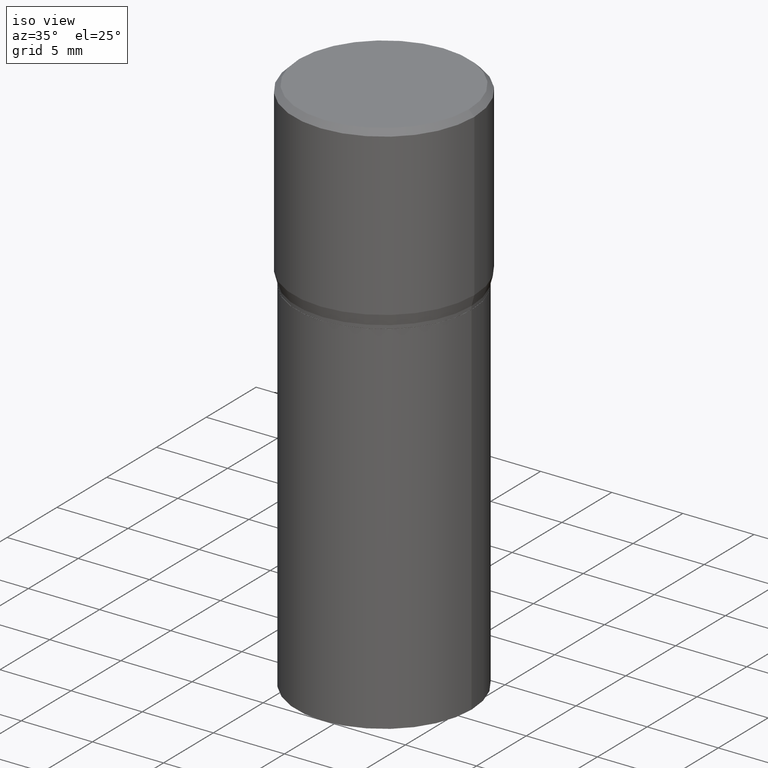
[diagram: clean part render]
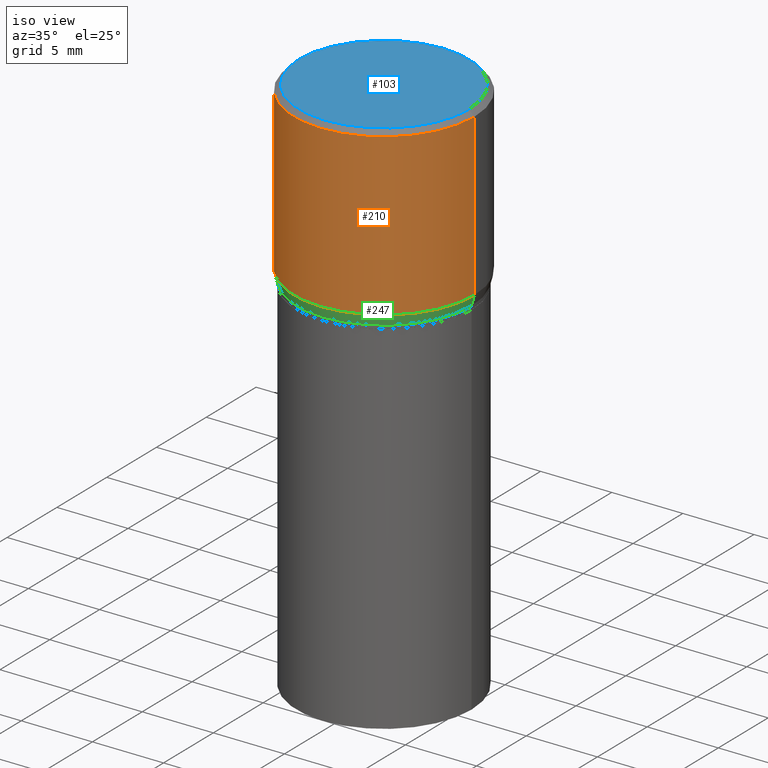
[diagram: same view with three faces highlighted in distinct colors, each labeled with its STEP entity id]
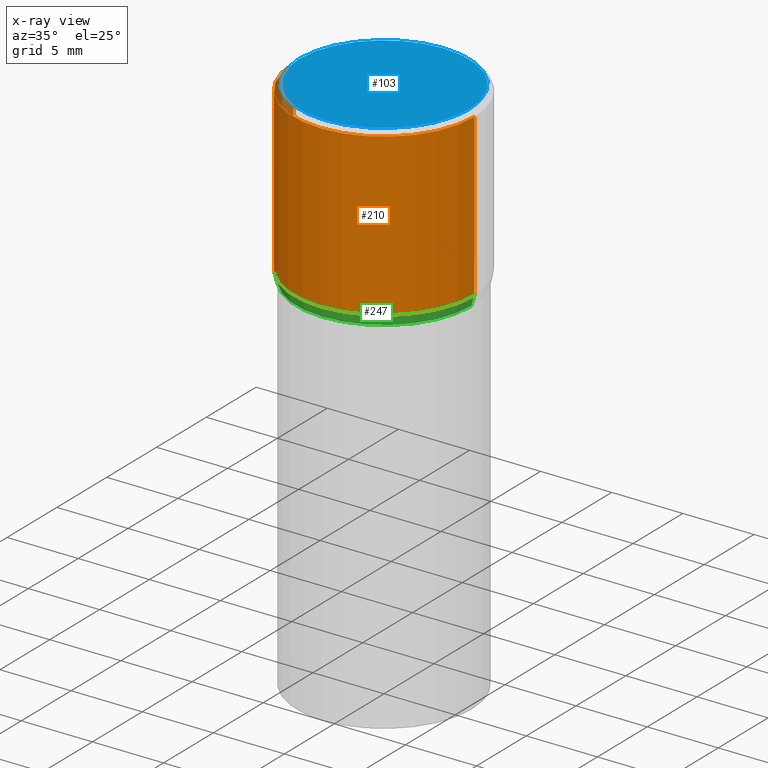
[diagram: x-ray of the same camera — body ghosted, the three highlighted faces saturated]
A machine part, iso view with three faces highlighted in distinct colors.
The next image is the same camera in x-ray (body ghosted, the three faces saturated) — at least one of them is partly hidden behind the body in this view.
Their STEP definitions:

[orange] entity #210 — the highlighted cylindrical surface (partial cylindrical patch) has radius 6.35 mm, axis along (-0, 0, 1).
#11 = CARTESIAN_POINT ( 'NONE',  ( 0.2500000000000000000, -1.745740669421566678E-15, 1.219044193948983948E-29 ) ) ;
#26 = CARTESIAN_POINT ( 'NONE',  ( 0.2500000000000000000, -3.354929516602825687E-15, -0.4608900037009626693 ) ) ;
#54 = EDGE_LOOP ( 'NONE', ( #321, #110, #464, #205 ) ) ;
#74 = VECTOR ( 'NONE', #371, 39.37007874015748143 ) ;
#77 = EDGE_CURVE ( 'NONE', #168, #307, #256, .T. ) ;
#110 = ORIENTED_EDGE ( 'NONE', *, *, #77, .T. ) ;
#114 = CIRCLE ( 'NONE', #215, 0.2500000000000000000 ) ;
#115 = CARTESIAN_POINT ( 'NONE',  ( -0.2500000000000000000, 1.671679922189909619E-16, -0.4608900037009626693 ) ) ;
#119 = CARTESIAN_POINT ( 'NONE',  ( 1.127092127133256402E-29, -1.609188847181259404E-15, -0.4608900037009626693 ) ) ;
#138 = CARTESIAN_POINT ( 'NONE',  ( -0.2500000000000000000, 9.455763057682970257E-16, -0.01499999999999999944 ) ) ;
#155 = LINE ( 'NONE', #11, #74 ) ;
#157 = DIRECTION ( 'NONE',  ( -2.445468806185136597E-29, 3.491481338843145583E-15, 1.000000000000000000 ) ) ;
#162 = CARTESIAN_POINT ( 'NONE',  ( 3.668203209277705088E-31, -5.237222008264718399E-17, -0.01499999999999999944 ) ) ;
#168 = VERTEX_POINT ( 'NONE', #115 ) ;
#169 = DIRECTION ( 'NONE',  ( -2.445468806185136877E-29, 3.491481338843145188E-15, 1.000000000000000000 ) ) ;
#192 = FACE_OUTER_BOUND ( 'NONE', #54, .T. ) ;
#201 = VECTOR ( 'NONE', #169, 39.37007874015748143 ) ;
#205 = ORIENTED_EDGE ( 'NONE', *, *, #442, .F. ) ;
#210 = ADVANCED_FACE ( 'NONE', ( #192 ), #227, .T. ) ;
#215 = AXIS2_PLACEMENT_3D ( 'NONE', #162, #306, #449 ) ;
#227 = CYLINDRICAL_SURFACE ( 'NONE', #399, 0.2500000000000000000 ) ;
#229 = EDGE_CURVE ( 'NONE', #168, #302, #343, .T. ) ;
#253 = VERTEX_POINT ( 'NONE', #278 ) ;
#256 = CIRCLE ( 'NONE', #335, 0.2500000000000000000 ) ;
#278 = CARTESIAN_POINT ( 'NONE',  ( 0.2500000000000000000, -1.798112889504214151E-15, -0.01499999999999999944 ) ) ;
#299 = DIRECTION ( 'NONE',  ( -2.445468806185136597E-29, 3.491481338843145583E-15, 1.000000000000000000 ) ) ;
#302 = VERTEX_POINT ( 'NONE', #138 ) ;
#306 = DIRECTION ( 'NONE',  ( -2.445468806185136597E-29, 3.491481338843145583E-15, 1.000000000000000000 ) ) ;
#307 = VERTEX_POINT ( 'NONE', #26 ) ;
#321 = ORIENTED_EDGE ( 'NONE', *, *, #229, .F. ) ;
#333 = DIRECTION ( 'NONE',  ( 1.000000000000000000, -6.982962677686266711E-15, 0.000000000000000000 ) ) ;
#335 = AXIS2_PLACEMENT_3D ( 'NONE', #119, #299, #333 ) ;
#336 = CARTESIAN_POINT ( 'NONE',  ( 0.000000000000000000, 0.000000000000000000, 0.000000000000000000 ) ) ;
#343 = LINE ( 'NONE', #376, #201 ) ;
#366 = DIRECTION ( 'NONE',  ( 1.000000000000000000, -6.982962677686266711E-15, 4.876176775795935793E-29 ) ) ;
#371 = DIRECTION ( 'NONE',  ( -2.445468806185136877E-29, 3.491481338843145188E-15, 1.000000000000000000 ) ) ;
#376 = CARTESIAN_POINT ( 'NONE',  ( -0.2500000000000000000, 1.776356839400250465E-15, -1.229733772563726445E-29 ) ) ;
#399 = AXIS2_PLACEMENT_3D ( 'NONE', #336, #157, #366 ) ;
#442 = EDGE_CURVE ( 'NONE', #302, #253, #114, .T. ) ;
#449 = DIRECTION ( 'NONE',  ( 1.000000000000000000, -6.982962677686266711E-15, 0.000000000000000000 ) ) ;
#454 = EDGE_CURVE ( 'NONE', #307, #253, #155, .T. ) ;
#464 = ORIENTED_EDGE ( 'NONE', *, *, #454, .T. ) ;

[blue] entity #103 — the highlighted planar face has unit normal (0, -0, -1).
#10 = DIRECTION ( 'NONE',  ( 2.438088387897960049E-29, -3.491481338843145188E-15, -1.000000000000000000 ) ) ;
#22 = ORIENTED_EDGE ( 'NONE', *, *, #330, .T. ) ;
#37 = EDGE_LOOP ( 'NONE', ( #22, #171 ) ) ;
#92 = DIRECTION ( 'NONE',  ( 1.000000000000000000, -6.982962677686267499E-15, 4.878549297894958458E-29 ) ) ;
#103 = ADVANCED_FACE ( 'NONE', ( #231 ), #270, .F. ) ;
#134 = CARTESIAN_POINT ( 'NONE',  ( -0.2349999999999999867, 1.667182339297596256E-15, 1.568636843340762393E-16 ) ) ;
#137 = AXIS2_PLACEMENT_3D ( 'NONE', #439, #10, #329 ) ;
#171 = ORIENTED_EDGE ( 'NONE', *, *, #297, .T. ) ;
#180 = VERTEX_POINT ( 'NONE', #435 ) ;
#183 = AXIS2_PLACEMENT_3D ( 'NONE', #308, #276, #411 ) ;
#231 = FACE_OUTER_BOUND ( 'NONE', #37, .T. ) ;
#238 = DIRECTION ( 'NONE',  ( -2.445468806185136597E-29, 3.491481338843145583E-15, 1.000000000000000000 ) ) ;
#254 = CIRCLE ( 'NONE', #183, 0.2349999999999999867 ) ;
#270 = PLANE ( 'NONE',  #137 ) ;
#276 = DIRECTION ( 'NONE',  ( -2.445468806185136597E-29, 3.491481338843145583E-15, 1.000000000000000000 ) ) ;
#297 = EDGE_CURVE ( 'NONE', #180, #360, #254, .T. ) ;
#308 = CARTESIAN_POINT ( 'NONE',  ( -3.836052468622837406E-45, 5.476866265946494270E-31, 1.568636843340877764E-16 ) ) ;
#329 = DIRECTION ( 'NONE',  ( -1.000000000000000000, 6.982962677686265922E-15, -4.876176775795935793E-29 ) ) ;
#330 = EDGE_CURVE ( 'NONE', #360, #180, #410, .T. ) ;
#360 = VERTEX_POINT ( 'NONE', #134 ) ;
#361 = AXIS2_PLACEMENT_3D ( 'NONE', #456, #238, #92 ) ;
#410 = CIRCLE ( 'NONE', #361, 0.2349999999999999867 ) ;
#411 = DIRECTION ( 'NONE',  ( 1.000000000000000000, -6.982962677686267499E-15, 4.878549297894958458E-29 ) ) ;
#435 = CARTESIAN_POINT ( 'NONE',  ( 0.2349999999999999867, -1.689856874500919833E-15, 1.568636843340994368E-16 ) ) ;
#439 = CARTESIAN_POINT ( 'NONE',  ( 1.640996229256272519E-15, 0.2349999999999999867, -7.420662724610952803E-16 ) ) ;
#456 = CARTESIAN_POINT ( 'NONE',  ( -3.836052468622837406E-45, 5.476866265946494270E-31, 1.568636843340877764E-16 ) ) ;

[green] entity #247 — the highlighted conical surface has half-angle 15 deg.
#2 = CARTESIAN_POINT ( 'NONE',  ( 0.2421999999999999431, -3.402099416568755134E-15, -0.4900000000000001021 ) ) ;
#3 = EDGE_CURVE ( 'NONE', #275, #40, #219, .T. ) ;
#7 = CONICAL_SURFACE ( 'NONE', #319, 0.2421999999999999431, 0.2617993877991494078 ) ;
#14 = CARTESIAN_POINT ( 'NONE',  ( 0.2421999999999999431, -3.402099416568755134E-15, -0.4900000000000001021 ) ) ;
#20 = EDGE_CURVE ( 'NONE', #275, #168, #465, .T. ) ;
#26 = CARTESIAN_POINT ( 'NONE',  ( 0.2500000000000000000, -3.354929516602825687E-15, -0.4608900037009626693 ) ) ;
#27 = EDGE_CURVE ( 'NONE', #40, #307, #326, .T. ) ;
#40 = VERTEX_POINT ( 'NONE', #14 ) ;
#61 = DIRECTION ( 'NONE',  ( 1.000000000000000000, -6.982962677686266711E-15, 0.000000000000000000 ) ) ;
#64 = DIRECTION ( 'NONE',  ( -2.445468806185136597E-29, 3.491481338843145583E-15, 1.000000000000000000 ) ) ;
#76 = EDGE_LOOP ( 'NONE', ( #184, #380, #401, #129 ) ) ;
#77 = EDGE_CURVE ( 'NONE', #168, #307, #256, .T. ) ;
#90 = VECTOR ( 'NONE', #112, 39.37007874015748854 ) ;
#97 = CARTESIAN_POINT ( 'NONE',  ( -0.2421999999999999431, 8.863832109840594652E-17, -0.4900000000000001021 ) ) ;
#112 = DIRECTION ( 'NONE',  ( 0.2588190451025206840, 1.565188264969626504E-15, 0.9659258262890682012 ) ) ;
#115 = CARTESIAN_POINT ( 'NONE',  ( -0.2500000000000000000, 1.671679922189909619E-16, -0.4608900037009626693 ) ) ;
#119 = CARTESIAN_POINT ( 'NONE',  ( 1.127092127133256402E-29, -1.609188847181259404E-15, -0.4608900037009626693 ) ) ;
#129 = ORIENTED_EDGE ( 'NONE', *, *, #77, .F. ) ;
#168 = VERTEX_POINT ( 'NONE', #115 ) ;
#176 = DIRECTION ( 'NONE',  ( 1.000000000000000000, -6.982962677686266711E-15, 0.000000000000000000 ) ) ;
#184 = ORIENTED_EDGE ( 'NONE', *, *, #20, .F. ) ;
#219 = CIRCLE ( 'NONE', #427, 0.2421999999999999431 ) ;
#236 = VECTOR ( 'NONE', #389, 39.37007874015748854 ) ;
#243 = CARTESIAN_POINT ( 'NONE',  ( 1.198279715030717173E-29, -1.710825856033141537E-15, -0.4900000000000001021 ) ) ;
#247 = ADVANCED_FACE ( 'NONE', ( #378 ), #7, .T. ) ;
#256 = CIRCLE ( 'NONE', #335, 0.2500000000000000000 ) ;
#275 = VERTEX_POINT ( 'NONE', #97 ) ;
#285 = CARTESIAN_POINT ( 'NONE',  ( 1.198279715030717173E-29, -1.710825856033141537E-15, -0.4900000000000001021 ) ) ;
#299 = DIRECTION ( 'NONE',  ( -2.445468806185136597E-29, 3.491481338843145583E-15, 1.000000000000000000 ) ) ;
#307 = VERTEX_POINT ( 'NONE', #26 ) ;
#319 = AXIS2_PLACEMENT_3D ( 'NONE', #243, #64, #61 ) ;
#324 = DIRECTION ( 'NONE',  ( -2.445468806185136597E-29, 3.491481338843145583E-15, 1.000000000000000000 ) ) ;
#326 = LINE ( 'NONE', #2, #90 ) ;
#333 = DIRECTION ( 'NONE',  ( 1.000000000000000000, -6.982962677686266711E-15, 0.000000000000000000 ) ) ;
#335 = AXIS2_PLACEMENT_3D ( 'NONE', #119, #299, #333 ) ;
#378 = FACE_OUTER_BOUND ( 'NONE', #76, .T. ) ;
#380 = ORIENTED_EDGE ( 'NONE', *, *, #3, .T. ) ;
#389 = DIRECTION ( 'NONE',  ( -0.2588190451025206840, 5.211531920934545520E-15, 0.9659258262890682012 ) ) ;
#401 = ORIENTED_EDGE ( 'NONE', *, *, #27, .T. ) ;
#426 = CARTESIAN_POINT ( 'NONE',  ( -0.2421999999999999431, 1.010864997782067697E-17, -0.4900000000000001021 ) ) ;
#427 = AXIS2_PLACEMENT_3D ( 'NONE', #285, #324, #176 ) ;
#465 = LINE ( 'NONE', #426, #236 ) ;